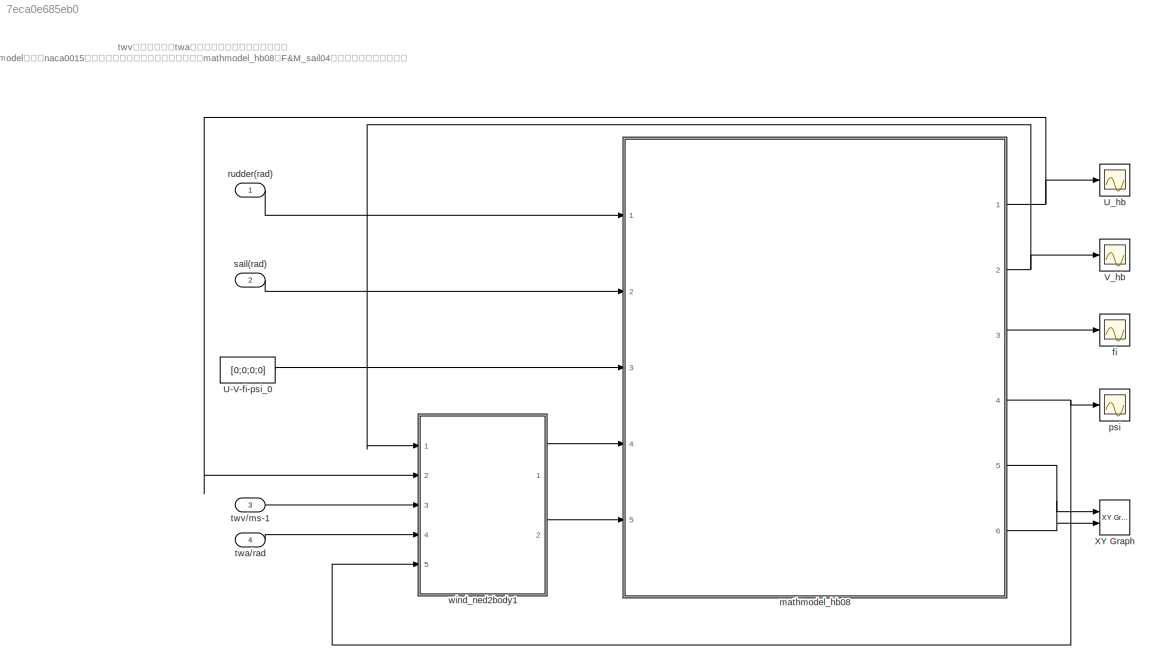
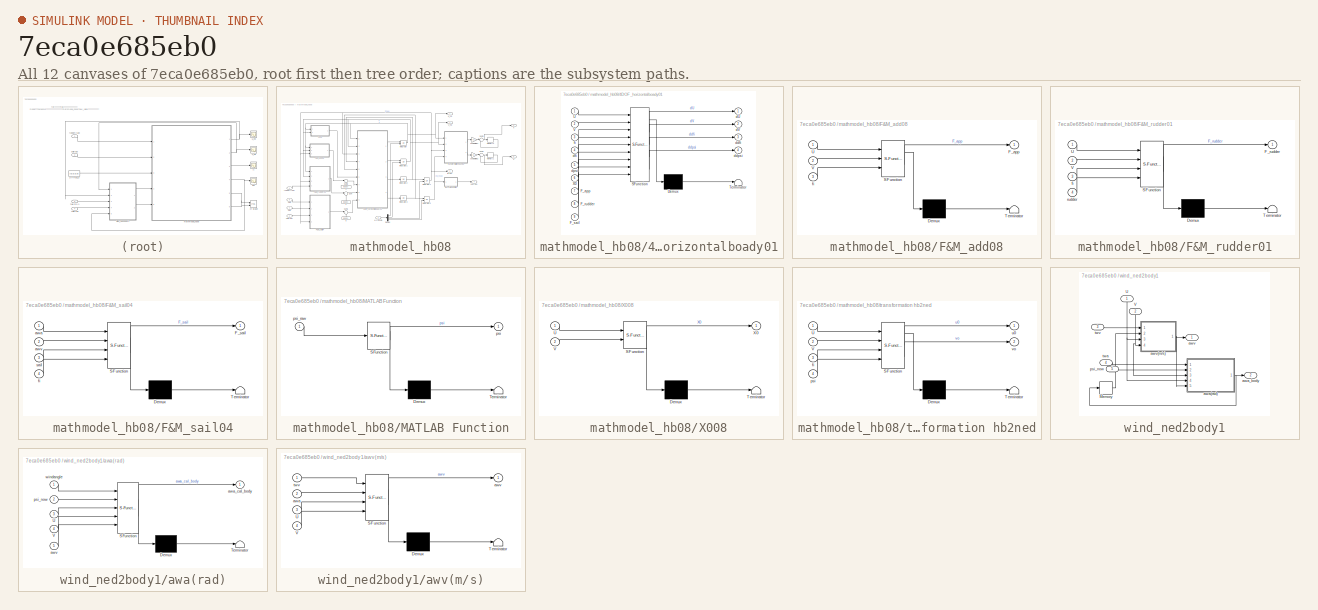
[diagram: thumbnail index - all 12 canvases of the model, root first then tree order]
MODEL slx_7eca0e685eb0
KIND model
BLOCK [Constant] U-V-fi-psi_0
  Value = [0;0;0;0]
BLOCK [Scope] U_hb
  DataFormat = StructureWithTime
  Floating = off
  NumInputPorts = 1
  Ports = [1]
  SampleTime = 0
  SaveName = ScopeData2
  ShowLegends = off
  YMax = 1.5
  YMin = -0.5
BLOCK [Scope] V_hb
  DataFormat = StructureWithTime
  Floating = off
  NumInputPorts = 1
  Ports = [1]
  SampleTime = 0
  SaveName = ScopeData1
  ShowLegends = off
  YMax = 0.4
  YMin = -0.4
BLOCK [Reference] XY Graph  REF=simulink/Sinks/XY Graph
  Ports = [2]
  SourceBlock = simulink/Sinks/XY Graph
  SourceType = XY scope.
  st = -1
  xmax = 150
  xmin = -050
  ymax = 150
  ymin = -50
BLOCK [Scope] fi
  DataFormat = StructureWithTime
  Floating = off
  NumInputPorts = 1
  Ports = [1]
  SampleTime = 0
  ShowLegends = off
  YMax = 0.5
  YMin = -0.5
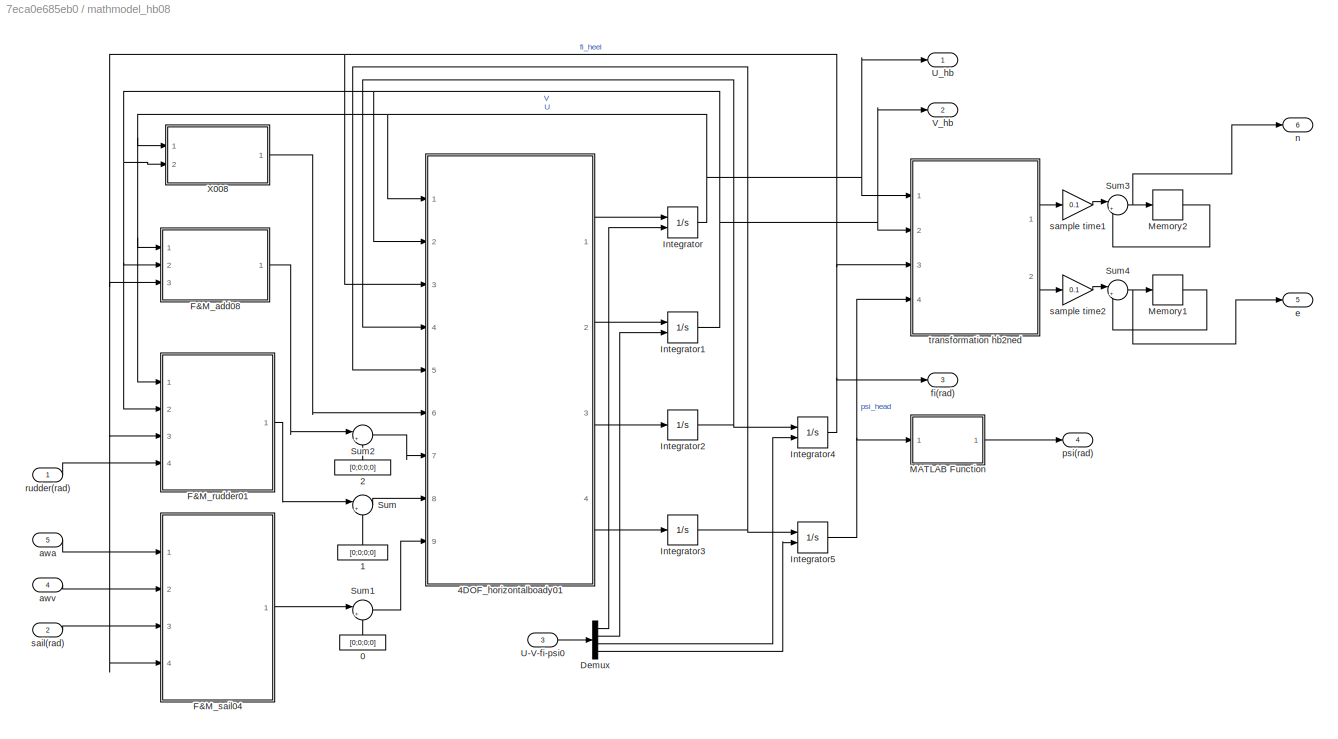
BLOCK [SubSystem] mathmodel_hb08
  Ports = [5, 6]
  RequestExecContextInheritance = off
BLOCK [Constant] mathmodel_hb08/0
  Value = [0;0;0;0]
BLOCK [Constant] mathmodel_hb08/1
  Value = [0;0;0;0]
BLOCK [Constant] mathmodel_hb08/2
  Value = [0;0;0;0]
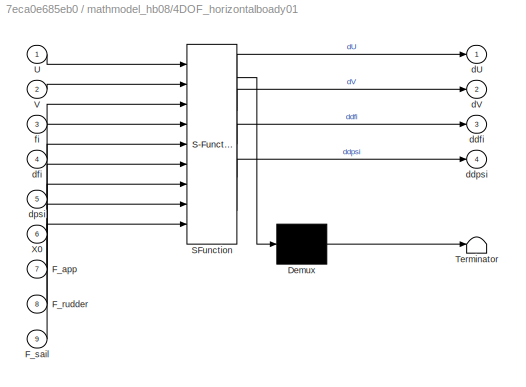
BLOCK [SubSystem] mathmodel_hb08/4DOF_horizontalboady01
  ErrorFcn = Stateflow.Translate.translate
  PermitHierarchicalResolution = ExplicitOnly
  Ports = [9, 4]
  RequestExecContextInheritance = off
  SFBlockType = MATLAB Function
  TreatAsAtomicUnit = on
BLOCK [Demux] mathmodel_hb08/4DOF_horizontalboady01/ Demux 
  Outputs = 1
  Ports = [1, 1]
BLOCK [S-Function] mathmodel_hb08/4DOF_horizontalboady01/ SFunction 
  EnableBusSupport = on
  FunctionName = sf_sfun
  Parameters = par
  PortCounts = [9 5]
  Ports = [9, 5]
  Tag = Stateflow S-Function final_sailboat_model_horizontalbody08 2
BLOCK [Terminator] mathmodel_hb08/4DOF_horizontalboady01/ Terminator 
BLOCK [Inport] mathmodel_hb08/4DOF_horizontalboady01/F_app
  IconDisplay = Port number
  Port = 7
BLOCK [Inport] mathmodel_hb08/4DOF_horizontalboady01/F_rudder
  IconDisplay = Port number
  Port = 8
BLOCK [Inport] mathmodel_hb08/4DOF_horizontalboady01/F_sail
  IconDisplay = Port number
  Port = 9
BLOCK [Inport] mathmodel_hb08/4DOF_horizontalboady01/U
  IconDisplay = Port number
BLOCK [Inport] mathmodel_hb08/4DOF_horizontalboady01/V
  IconDisplay = Port number
  Port = 2
BLOCK [Inport] mathmodel_hb08/4DOF_horizontalboady01/X0
  IconDisplay = Port number
  Port = 6
BLOCK [Outport] mathmodel_hb08/4DOF_horizontalboady01/dU
  IconDisplay = Port number
BLOCK [Outport] mathmodel_hb08/4DOF_horizontalboady01/dV
  IconDisplay = Port number
  Port = 2
BLOCK [Outport] mathmodel_hb08/4DOF_horizontalboady01/ddfi
  IconDisplay = Port number
  Port = 3
BLOCK [Outport] mathmodel_hb08/4DOF_horizontalboady01/ddpsi
  IconDisplay = Port number
  Port = 4
BLOCK [Inport] mathmodel_hb08/4DOF_horizontalboady01/dfi
  IconDisplay = Port number
  Port = 4
BLOCK [Inport] mathmodel_hb08/4DOF_horizontalboady01/dpsi
  IconDisplay = Port number
  Port = 5
BLOCK [Inport] mathmodel_hb08/4DOF_horizontalboady01/fi
  IconDisplay = Port number
  Port = 3
BLOCK [Demux] mathmodel_hb08/Demux
  DisplayOption = bar
  Ports = [1, 4]
BLOCK [SubSystem] mathmodel_hb08/F&M_add08
  ErrorFcn = Stateflow.Translate.translate
  PermitHierarchicalResolution = ExplicitOnly
  Ports = [3, 1]
  RequestExecContextInheritance = off
  SFBlockType = MATLAB Function
  TreatAsAtomicUnit = on
BLOCK [Demux] mathmodel_hb08/F&M_add08/ Demux 
  Outputs = 1
  Ports = [1, 1]
BLOCK [S-Function] mathmodel_hb08/F&M_add08/ SFunction 
  EnableBusSupport = on
  FunctionName = sf_sfun
  Parameters = par
  PortCounts = [3 2]
  Ports = [3, 2]
  Tag = Stateflow S-Function final_sailboat_model_horizontalbody08 3
BLOCK [Terminator] mathmodel_hb08/F&M_add08/ Terminator 
BLOCK [Outport] mathmodel_hb08/F&M_add08/F_app
  IconDisplay = Port number
BLOCK [Inport] mathmodel_hb08/F&M_add08/U
  IconDisplay = Port number
BLOCK [Inport] mathmodel_hb08/F&M_add08/V
  IconDisplay = Port number
  Port = 2
BLOCK [Inport] mathmodel_hb08/F&M_add08/fi
  IconDisplay = Port number
  Port = 3
BLOCK [SubSystem] mathmodel_hb08/F&M_rudder01
  ErrorFcn = Stateflow.Translate.translate
  PermitHierarchicalResolution = ExplicitOnly
  Ports = [4, 1]
  RequestExecContextInheritance = off
  SFBlockType = MATLAB Function
  TreatAsAtomicUnit = on
BLOCK [Demux] mathmodel_hb08/F&M_rudder01/ Demux 
  Outputs = 1
  Ports = [1, 1]
BLOCK [S-Function] mathmodel_hb08/F&M_rudder01/ SFunction 
  EnableBusSupport = on
  FunctionName = sf_sfun
  Parameters = par
  PortCounts = [4 2]
  Ports = [4, 2]
  Tag = Stateflow S-Function final_sailboat_model_horizontalbody08 5
BLOCK [Terminator] mathmodel_hb08/F&M_rudder01/ Terminator 
BLOCK [Outport] mathmodel_hb08/F&M_rudder01/F_rudder
  IconDisplay = Port number
BLOCK [Inport] mathmodel_hb08/F&M_rudder01/U
  IconDisplay = Port number
BLOCK [Inport] mathmodel_hb08/F&M_rudder01/V
  IconDisplay = Port number
  Port = 2
BLOCK [Inport] mathmodel_hb08/F&M_rudder01/fi
  IconDisplay = Port number
  Port = 3
BLOCK [Inport] mathmodel_hb08/F&M_rudder01/rudder
  IconDisplay = Port number
  Port = 4
BLOCK [SubSystem] mathmodel_hb08/F&M_sail04
  ErrorFcn = Stateflow.Translate.translate
  PermitHierarchicalResolution = ExplicitOnly
  Ports = [4, 1]
  RequestExecContextInheritance = off
  SFBlockType = MATLAB Function
  TreatAsAtomicUnit = on
BLOCK [Demux] mathmodel_hb08/F&M_sail04/ Demux 
  Outputs = 1
  Ports = [1, 1]
BLOCK [S-Function] mathmodel_hb08/F&M_sail04/ SFunction 
  EnableBusSupport = on
  FunctionName = sf_sfun
  Parameters = par
  PortCounts = [4 2]
  Ports = [4, 2]
  Tag = Stateflow S-Function final_sailboat_model_horizontalbody08 7
BLOCK [Terminator] mathmodel_hb08/F&M_sail04/ Terminator 
BLOCK [Outport] mathmodel_hb08/F&M_sail04/F_sail
  IconDisplay = Port number
BLOCK [Inport] mathmodel_hb08/F&M_sail04/awa
  IconDisplay = Port number
BLOCK [Inport] mathmodel_hb08/F&M_sail04/awv
  IconDisplay = Port number
  Port = 2
BLOCK [Inport] mathmodel_hb08/F&M_sail04/fi
  IconDisplay = Port number
  Port = 4
BLOCK [Inport] mathmodel_hb08/F&M_sail04/sail
  IconDisplay = Port number
  Port = 3
BLOCK [Integrator] mathmodel_hb08/Integrator
  InitialConditionSource = external
  Ports = [2, 1]
BLOCK [Integrator] mathmodel_hb08/Integrator1
  InitialConditionSource = external
  Ports = [2, 1]
BLOCK [Integrator] mathmodel_hb08/Integrator2
  Ports = [1, 1]
BLOCK [Integrator] mathmodel_hb08/Integrator3
  Ports = [1, 1]
BLOCK [Integrator] mathmodel_hb08/Integrator4
  InitialConditionSource = external
  Ports = [2, 1]
BLOCK [Integrator] mathmodel_hb08/Integrator5
  InitialConditionSource = external
  Ports = [2, 1]
BLOCK [SubSystem] mathmodel_hb08/MATLAB Function
  ErrorFcn = Stateflow.Translate.translate
  PermitHierarchicalResolution = ExplicitOnly
  Ports = [1, 1]
  RequestExecContextInheritance = off
  SFBlockType = MATLAB Function
  TreatAsAtomicUnit = on
BLOCK [Demux] mathmodel_hb08/MATLAB Function/ Demux 
  Outputs = 1
  Ports = [1, 1]
BLOCK [S-Function] mathmodel_hb08/MATLAB Function/ SFunction 
  EnableBusSupport = on
  FunctionName = sf_sfun
  PortCounts = [1 2]
  Ports = [1, 2]
  Tag = Stateflow S-Function final_sailboat_model_horizontalbody08 8
BLOCK [Terminator] mathmodel_hb08/MATLAB Function/ Terminator 
BLOCK [Outport] mathmodel_hb08/MATLAB Function/psi
  IconDisplay = Port number
BLOCK [Inport] mathmodel_hb08/MATLAB Function/psi_raw
  IconDisplay = Port number
BLOCK [Memory] mathmodel_hb08/Memory1
  InheritSampleTime = on
BLOCK [Memory] mathmodel_hb08/Memory2
  InheritSampleTime = on
BLOCK [Sum] mathmodel_hb08/Sum
  IconShape = round
  InputSameDT = off
  Inputs = |++
  OutDataTypeStr = Inherit: Inherit via internal rule
  Ports = [2, 1]
  SaturateOnIntegerOverflow = off
BLOCK [Sum] mathmodel_hb08/Sum1
  IconShape = round
  InputSameDT = off
  Inputs = |++
  OutDataTypeStr = Inherit: Inherit via internal rule
  Ports = [2, 1]
  SaturateOnIntegerOverflow = off
BLOCK [Sum] mathmodel_hb08/Sum2
  IconShape = round
  InputSameDT = off
  Inputs = |++
  OutDataTypeStr = Inherit: Inherit via internal rule
  Ports = [2, 1]
  SaturateOnIntegerOverflow = off
BLOCK [Sum] mathmodel_hb08/Sum3
  IconShape = round
  InputSameDT = off
  Inputs = |++
  OutDataTypeStr = Inherit: Inherit via internal rule
  Ports = [2, 1]
  SaturateOnIntegerOverflow = off
BLOCK [Sum] mathmodel_hb08/Sum4
  IconShape = round
  InputSameDT = off
  Inputs = |++
  OutDataTypeStr = Inherit: Inherit via internal rule
  Ports = [2, 1]
  SaturateOnIntegerOverflow = off
BLOCK [Inport] mathmodel_hb08/U-V-fi-psi0
  IconDisplay = Port number
  Port = 3
BLOCK [Outport] mathmodel_hb08/U_hb
  IconDisplay = Port number
BLOCK [Outport] mathmodel_hb08/V_hb
  IconDisplay = Port number
  Port = 2
BLOCK [SubSystem] mathmodel_hb08/X008
  ErrorFcn = Stateflow.Translate.translate
  PermitHierarchicalResolution = ExplicitOnly
  Ports = [2, 1]
  RequestExecContextInheritance = off
  SFBlockType = MATLAB Function
  TreatAsAtomicUnit = on
BLOCK [Demux] mathmodel_hb08/X008/ Demux 
  Outputs = 1
  Ports = [1, 1]
BLOCK [S-Function] mathmodel_hb08/X008/ SFunction 
  EnableBusSupport = on
  FunctionName = sf_sfun
  Parameters = par
  PortCounts = [2 2]
  Ports = [2, 2]
  Tag = Stateflow S-Function final_sailboat_model_horizontalbody08 9
BLOCK [Terminator] mathmodel_hb08/X008/ Terminator 
BLOCK [Inport] mathmodel_hb08/X008/U
  IconDisplay = Port number
BLOCK [Inport] mathmodel_hb08/X008/V
  IconDisplay = Port number
  Port = 2
BLOCK [Outport] mathmodel_hb08/X008/X0
  IconDisplay = Port number
BLOCK [Inport] mathmodel_hb08/awa
  IconDisplay = Port number
  Port = 5
BLOCK [Inport] mathmodel_hb08/awv
  IconDisplay = Port number
  Port = 4
BLOCK [Outport] mathmodel_hb08/e
  IconDisplay = Port number
  Port = 5
BLOCK [Outport] mathmodel_hb08/fi(rad)
  IconDisplay = Port number
  Port = 3
BLOCK [Outport] mathmodel_hb08/n
  IconDisplay = Port number
  Port = 6
BLOCK [Outport] mathmodel_hb08/psi(rad)
  IconDisplay = Port number
  Port = 4
BLOCK [Inport] mathmodel_hb08/rudder(rad)
  IconDisplay = Port number
BLOCK [Inport] mathmodel_hb08/sail(rad)
  IconDisplay = Port number
  Port = 2
BLOCK [Gain] mathmodel_hb08/sample time1
  Gain = 0.1
  OutDataTypeStr = Inherit: Inherit via internal rule
  ParamDataTypeStr = Inherit: Inherit via internal rule
  SaturateOnIntegerOverflow = off
BLOCK [Gain] mathmodel_hb08/sample time2
  Gain = 0.1
  OutDataTypeStr = Inherit: Inherit via internal rule
  ParamDataTypeStr = Inherit: Inherit via internal rule
  SaturateOnIntegerOverflow = off
BLOCK [SubSystem] mathmodel_hb08/transformation hb2ned
  ErrorFcn = Stateflow.Translate.translate
  PermitHierarchicalResolution = ExplicitOnly
  Ports = [4, 2]
  RequestExecContextInheritance = off
  SFBlockType = MATLAB Function
  TreatAsAtomicUnit = on
BLOCK [Demux] mathmodel_hb08/transformation hb2ned/ Demux 
  Outputs = 1
  Ports = [1, 1]
BLOCK [S-Function] mathmodel_hb08/transformation hb2ned/ SFunction 
  EnableBusSupport = on
  FunctionName = sf_sfun
  PortCounts = [4 3]
  Ports = [4, 3]
  Tag = Stateflow S-Function final_sailboat_model_horizontalbody08 10
BLOCK [Terminator] mathmodel_hb08/transformation hb2ned/ Terminator 
BLOCK [Inport] mathmodel_hb08/transformation hb2ned/U
  IconDisplay = Port number
BLOCK [Inport] mathmodel_hb08/transformation hb2ned/V
  IconDisplay = Port number
  Port = 2
BLOCK [Inport] mathmodel_hb08/transformation hb2ned/fi
  IconDisplay = Port number
  Port = 3
BLOCK [Inport] mathmodel_hb08/transformation hb2ned/psi
  IconDisplay = Port number
  Port = 4
BLOCK [Outport] mathmodel_hb08/transformation hb2ned/u0
  IconDisplay = Port number
BLOCK [Outport] mathmodel_hb08/transformation hb2ned/vo
  IconDisplay = Port number
  Port = 2
BLOCK [Scope] psi 
  DataFormat = StructureWithTime
  Floating = off
  NumInputPorts = 1
  Ports = [1]
  SampleTime = 0
  SaveName = ScopeData3
  ShowLegends = off
  YMax = 4
  YMin = -4
BLOCK [Inport] rudder(rad)
  IconDisplay = Port number
BLOCK [Inport] sail(rad)
  IconDisplay = Port number
  Port = 2
BLOCK [Inport] twa//rad
  IconDisplay = Port number
  Port = 4
BLOCK [Inport] twv//ms-1
  IconDisplay = Port number
  Port = 3
BLOCK [SubSystem] wind_ned2body1
  Ports = [5, 2]
  RequestExecContextInheritance = off
BLOCK [Memory] wind_ned2body1/Memory
BLOCK [Inport] wind_ned2body1/U
  IconDisplay = Port number
BLOCK [Inport] wind_ned2body1/V
  IconDisplay = Port number
  Port = 2
BLOCK [SubSystem] wind_ned2body1/awa(rad)
  ErrorFcn = Stateflow.Translate.translate
  PermitHierarchicalResolution = ExplicitOnly
  Ports = [5, 1]
  RequestExecContextInheritance = off
  SFBlockType = MATLAB Function
  TreatAsAtomicUnit = on
BLOCK [Demux] wind_ned2body1/awa(rad)/ Demux 
  Outputs = 1
  Ports = [1, 1]
BLOCK [S-Function] wind_ned2body1/awa(rad)/ SFunction 
  EnableBusSupport = on
  FunctionName = sf_sfun
  PortCounts = [5 2]
  Ports = [5, 2]
  Tag = Stateflow S-Function final_sailboat_model_horizontalbody08 6
BLOCK [Terminator] wind_ned2body1/awa(rad)/ Terminator 
BLOCK [Inport] wind_ned2body1/awa(rad)/U
  IconDisplay = Port number
  Port = 3
BLOCK [Inport] wind_ned2body1/awa(rad)/V
  IconDisplay = Port number
  Port = 4
BLOCK [Outport] wind_ned2body1/awa(rad)/awa_cal_body
  IconDisplay = Port number
BLOCK [Inport] wind_ned2body1/awa(rad)/awv
  IconDisplay = Port number
  Port = 5
BLOCK [Inport] wind_ned2body1/awa(rad)/psi_now
  IconDisplay = Port number
  Port = 2
BLOCK [Inport] wind_ned2body1/awa(rad)/windangle
  IconDisplay = Port number
BLOCK [Outport] wind_ned2body1/awa_body
  IconDisplay = Port number
  Port = 2
BLOCK [Outport] wind_ned2body1/awv
  IconDisplay = Port number
BLOCK [SubSystem] wind_ned2body1/awv(m//s)
  ErrorFcn = Stateflow.Translate.translate
  PermitHierarchicalResolution = ExplicitOnly
  Ports = [4, 1]
  RequestExecContextInheritance = off
  SFBlockType = MATLAB Function
  TreatAsAtomicUnit = on
BLOCK [Demux] wind_ned2body1/awv(m//s)/ Demux 
  Outputs = 1
  Ports = [1, 1]
BLOCK [S-Function] wind_ned2body1/awv(m//s)/ SFunction 
  EnableBusSupport = on
  FunctionName = sf_sfun
  PortCounts = [4 2]
  Ports = [4, 2]
  Tag = Stateflow S-Function final_sailboat_model_horizontalbody08 1
BLOCK [Terminator] wind_ned2body1/awv(m//s)/ Terminator 
BLOCK [Inport] wind_ned2body1/awv(m//s)/U
  IconDisplay = Port number
  Port = 3
BLOCK [Inport] wind_ned2body1/awv(m//s)/V
  IconDisplay = Port number
  Port = 4
BLOCK [Inport] wind_ned2body1/awv(m//s)/awa
  IconDisplay = Port number
  Port = 2
BLOCK [Outport] wind_ned2body1/awv(m//s)/awv
  IconDisplay = Port number
BLOCK [Inport] wind_ned2body1/awv(m//s)/twv
  IconDisplay = Port number
BLOCK [Inport] wind_ned2body1/psi_now
  IconDisplay = Port number
  Port = 5
BLOCK [Inport] wind_ned2body1/twa
  IconDisplay = Port number
  Port = 4
BLOCK [Inport] wind_ned2body1/twv
  IconDisplay = Port number
  Port = 3
ANNOTATION (root): twv指真风风速，twa指真风风向角（北东地坐标下） model中帆为naca0015的数据，要改也很容易。。。只在模型mathmodel_hb08的F&M_sail04中更改升阻力系数表即可
LINE U-V-fi-psi_0:1 -> mathmodel_hb08:3
LINE mathmodel_hb08/0:1 -> mathmodel_hb08/Sum1:2
LINE mathmodel_hb08/1:1 -> mathmodel_hb08/Sum:2
LINE mathmodel_hb08/2:1 -> mathmodel_hb08/Sum2:2
LINE mathmodel_hb08/4DOF_horizontalboady01:1 -> mathmodel_hb08/Integrator:1
LINE mathmodel_hb08/4DOF_horizontalboady01:2 -> mathmodel_hb08/Integrator1:1
LINE mathmodel_hb08/4DOF_horizontalboady01:3 -> mathmodel_hb08/Integrator2:1
LINE mathmodel_hb08/4DOF_horizontalboady01:4 -> mathmodel_hb08/Integrator3:1
LINE mathmodel_hb08/Demux:1 -> mathmodel_hb08/Integrator:2
LINE mathmodel_hb08/Demux:2 -> mathmodel_hb08/Integrator1:2
LINE mathmodel_hb08/Demux:3 -> mathmodel_hb08/Integrator4:2
LINE mathmodel_hb08/Demux:4 -> mathmodel_hb08/Integrator5:2
LINE mathmodel_hb08/F&M_add08:1 -> mathmodel_hb08/Sum2:1
LINE mathmodel_hb08/F&M_rudder01:1 -> mathmodel_hb08/Sum:1
LINE mathmodel_hb08/F&M_sail04:1 -> mathmodel_hb08/Sum1:1
NET mathmodel_hb08/Integrator1:1 -> mathmodel_hb08/4DOF_horizontalboady01:2, mathmodel_hb08/F&M_add08:2, mathmodel_hb08/F&M_rudder01:2, mathmodel_hb08/V_hb:1, mathmodel_hb08/X008:2, mathmodel_hb08/transformation hb2ned:2
NET mathmodel_hb08/Integrator2:1 -> mathmodel_hb08/4DOF_horizontalboady01:4, mathmodel_hb08/Integrator4:1
NET mathmodel_hb08/Integrator3:1 -> mathmodel_hb08/4DOF_horizontalboady01:5, mathmodel_hb08/Integrator5:1
NET mathmodel_hb08/Integrator4:1 -> mathmodel_hb08/4DOF_horizontalboady01:3, mathmodel_hb08/F&M_add08:3, mathmodel_hb08/F&M_rudder01:3, mathmodel_hb08/F&M_sail04:4, mathmodel_hb08/fi(rad):1, mathmodel_hb08/transformation hb2ned:3
NET mathmodel_hb08/Integrator5:1 -> mathmodel_hb08/MATLAB Function:1, mathmodel_hb08/transformation hb2ned:4
NET mathmodel_hb08/Integrator:1 -> mathmodel_hb08/4DOF_horizontalboady01:1, mathmodel_hb08/F&M_add08:1, mathmodel_hb08/F&M_rudder01:1, mathmodel_hb08/U_hb:1, mathmodel_hb08/X008:1, mathmodel_hb08/transformation hb2ned:1
LINE mathmodel_hb08/MATLAB Function:1 -> mathmodel_hb08/psi(rad):1
LINE mathmodel_hb08/Memory1:1 -> mathmodel_hb08/Sum4:2
LINE mathmodel_hb08/Memory2:1 -> mathmodel_hb08/Sum3:2
LINE mathmodel_hb08/Sum1:1 -> mathmodel_hb08/4DOF_horizontalboady01:9
LINE mathmodel_hb08/Sum2:1 -> mathmodel_hb08/4DOF_horizontalboady01:7
NET mathmodel_hb08/Sum3:1 -> mathmodel_hb08/Memory2:1, mathmodel_hb08/n:1
NET mathmodel_hb08/Sum4:1 -> mathmodel_hb08/Memory1:1, mathmodel_hb08/e:1
LINE mathmodel_hb08/Sum:1 -> mathmodel_hb08/4DOF_horizontalboady01:8
LINE mathmodel_hb08/U-V-fi-psi0:1 -> mathmodel_hb08/Demux:1
LINE mathmodel_hb08/X008:1 -> mathmodel_hb08/4DOF_horizontalboady01:6
LINE mathmodel_hb08/awa:1 -> mathmodel_hb08/F&M_sail04:1
LINE mathmodel_hb08/awv:1 -> mathmodel_hb08/F&M_sail04:2
LINE mathmodel_hb08/rudder(rad):1 -> mathmodel_hb08/F&M_rudder01:4
LINE mathmodel_hb08/sail(rad):1 -> mathmodel_hb08/F&M_sail04:3
LINE mathmodel_hb08/sample time1:1 -> mathmodel_hb08/Sum3:1
LINE mathmodel_hb08/sample time2:1 -> mathmodel_hb08/Sum4:1
LINE mathmodel_hb08/transformation hb2ned:1 -> mathmodel_hb08/sample time1:1
LINE mathmodel_hb08/transformation hb2ned:2 -> mathmodel_hb08/sample time2:1
NET mathmodel_hb08:1 -> U_hb:1, wind_ned2body1:2
NET mathmodel_hb08:2 -> V_hb:1, wind_ned2body1:1
LINE mathmodel_hb08:3 -> fi:1
NET mathmodel_hb08:4 -> psi :1, wind_ned2body1:5
LINE mathmodel_hb08:5 -> XY Graph:1
LINE mathmodel_hb08:6 -> XY Graph:2
LINE rudder(rad):1 -> mathmodel_hb08:1
LINE sail(rad):1 -> mathmodel_hb08:2
LINE twa//rad:1 -> wind_ned2body1:4
LINE twv//ms-1:1 -> wind_ned2body1:3
LINE wind_ned2body1/Memory:1 -> wind_ned2body1/awv(m//s):2
NET wind_ned2body1/U:1 -> wind_ned2body1/awa(rad):4, wind_ned2body1/awv(m//s):3
NET wind_ned2body1/V:1 -> wind_ned2body1/awa(rad):3, wind_ned2body1/awv(m//s):4
NET wind_ned2body1/awa(rad):1 -> wind_ned2body1/Memory:1, wind_ned2body1/awa_body:1
NET wind_ned2body1/awv(m//s):1 -> wind_ned2body1/awa(rad):5, wind_ned2body1/awv:1
LINE wind_ned2body1/psi_now:1 -> wind_ned2body1/awa(rad):2
LINE wind_ned2body1/twa:1 -> wind_ned2body1/awa(rad):1
LINE wind_ned2body1/twv:1 -> wind_ned2body1/awv(m//s):1
LINE wind_ned2body1:1 -> mathmodel_hb08:4
LINE wind_ned2body1:2 -> mathmodel_hb08:5
note: NET lines group one-source signal fan-out (src -> all destinations, sorted); 1:1 wires keep LINE
CHART wind_ned2body1/awv(m//s) states=1 transitions=1
  STATE_LABEL 'eML_blk_kernel()'
  STATE_LABEL 'SCRIPT:\nfunction awv = fcn(twv , awa , U , V)\n%#codegen\n    leeway = atan2(V , U);\n    Vyacht = sqrt(U^2 + V^2);\n    awv = sqrt(Vyacht^2 +twv^2 + 2*Vyacht*twv*cos(awa - leeway));\nend'
CHART mathmodel_hb08/4DOF_horizontalboady01 states=1 transitions=1
  STATE_LABEL 'eML_blk_kernel()'
  STATE_LABEL 'SCRIPT:\nfunction [dU,dV,ddfi,ddpsi] = fcn(par,U,V,fi,dfi,dpsi,X0,F_app,F_rudder,F_sail)\n%#codegen\n%horizontal body axis system, (x,y,z,U,V,W,fi_cap=fi,theta_cap=0,psi_cap=psi)\nVb=sqrt(U^2+V^2);\nXvdpsi = par.Xvdpsi*(0.5*par.rouwater*par.lwl^2*par.draftwithkeel);\nYdfi = par.Ydfi*(0.5*par.rouwater*par.lwl^2*par.draftwithkeel*Vb);\nYdpsi = par.Ydpsi*(0.5*par.rouwater*par.lwl^2*par.draftwithkeel*Vb);\nKd...<+1449ch>'
CHART mathmodel_hb08/F&M_add08 states=1 transitions=1
  STATE_LABEL 'eML_blk_kernel()'
  STATE_LABEL 'SCRIPT:\nfunction F_app = fcn(par,U,V,fi)\n%引用的是predicting the speed of sailing\n%yachts的附录3的回归公式，是针对IACC美洲杯竞技船的船模试验结果，虽然船型有些不一致，但是作为近似结果已经足够且合适。\nF_app=zeros(4,1);\nVyacht = sqrt(U^2 + V^2);\nq=0.5*par.rouwater*Vyacht^2*(par.swet*0.7/2+par.areakeel);\n%似乎因横倾产生的增阻乘的是船体湿表面积，诱导阻力和因leeway产生的增阻才乘area_LT侧向面积？此处为方便计做了任！性！简化\n%sail(angle) is positive when the sail trailing is on the starboard(righthand)(-pi,pi)\n...<+1313ch>'
CHART mathmodel_hb08/F&M_rudder01 states=1 transitions=1
  STATE_LABEL 'eML_blk_kernel()'
  STATE_LABEL 'SCRIPT:\nfunction F_rudder = fcn(par,U,V,fi,rudder)\n%#codegen\n% rudder is positive when operate the right rudder(-pi,pi)\nF_rudder=zeros(4,1);\nVb = sqrt(U^2+V^2);\nq=0.5*par.rouwater*(0.9*Vb)^2*par.arearudder;\n%sail(angle) is positive when the sail trailing is on the starboard(righthand)(-pi,pi)\nleeway=atan2(V,U);\nattack_rudder=leeway+rudder;\n[Clr,Cdr]=ruddercoef(attack_rudder);\nCx=Clr*cos(fi)*sin(le...<+2198ch>'
CHART wind_ned2body1/awa(rad) states=1 transitions=1
  STATE_LABEL 'eML_blk_kernel()'
  STATE_LABEL 'SCRIPT:\nfunction awa_cal_body = fcn(windangle,psi_now,U,V,awv)\n%#codegen\n%calculate instead of real awa in sailboat\n%the wind directi is defined as common,the wind of north means the windangle is 0\nVyacht = sqrt(U^2 + V^2);\nleeway = atan2( V , U);\nwindangle=mod(windangle,2*pi);\nif windangle>pi\n    windangle=windangle-2*pi;\nend\n%now the windangle[-pi,pi) and is defined as regular\n%psi_now(-pi,pi)\nt...<+287ch>'
CHART mathmodel_hb08/F&M_sail04 states=1 transitions=1
  STATE_LABEL 'eML_blk_kernel()'
  STATE_LABEL 'SCRIPT:\nfunction F_sail = fcn(par,awa,awv,sail,fi)\n%#codegen\n%awa is positive when the wind blow to the right face of the sail(-pi,pi)\nF_sail=zeros(4,1);\nq=0.5*par.rouair*awv^2*par.areasail;\n%sail(angle) is positive when the sail trailing is on the starboard(righthand)(-pi,pi)\nattack_sail=awa+sail;\narsail = par.arsail;\n[Cls,Cds]=sailcoef(attack_sail,arsail);\nCx=Cls*sin(awa)-Cds*cos(awa);\nCy=-Cls*c...<+2197ch>'
CHART mathmodel_hb08/MATLAB Function states=1 transitions=1
  STATE_LABEL 'eML_blk_kernel()'
  STATE_LABEL 'SCRIPT:\nfunction psi = fcn(psi_raw)\n%#codegen\npsi=mod(psi_raw,2*pi);\nif psi>pi\n    psi=psi-2*pi;\nend'
CHART mathmodel_hb08/X008 states=1 transitions=1
  STATE_LABEL 'eML_blk_kernel()'
  STATE_LABEL 'SCRIPT:\nfunction X0 = resistance0(par,U,V)\n%#采用maxsurf计算剩余阻力Rrhu，因为maxsurf也是用的delft船型经验公式，因此与论文一致\nVb = sqrt(U^2+V^2);\nReh = Vb * par.lwl*0.7/1.139*1e6;\ncf = 0.075 / (log(Reh)-2)^2;\nRfhu = 0.5*par.rouwater*U^2*par.swet*cf;\nfn = Vb/sqrt(par.g*par.lwl);\nRrhu = regressionRr(Vb);\n\nRek = Vb*par.ckeel/0.000014607;\ncfk = 0.075 / (log(Rek)-2)^2;   \nRfku = 0.5*par.rouwater*U^2*par.swetkeel*cfk;  \nkk = 2*par...<+1981ch>'
CHART mathmodel_hb08/transformation hb2ned states=1 transitions=1
  STATE_LABEL 'eML_blk_kernel()'
  STATE_LABEL 'SCRIPT:\nfunction [u0,vo]= fcn(U,V,fi,psi)\n%#codegen\n% transformations from {hb} to {ned}\nR_b2n=[cos(psi) -sin(psi)*cos(fi) sin(psi)*sin(fi)\n       sin(psi) cos(psi)*cos(fi) -cos(psi)*sin(fi)\n       0        sin(fi)           cos(fi)];\nR_hb2b=[1  0       0\n        0 cos(fi)  sin(fi)\n        0 -sin(fi) cos(fi)];\nvb0=R_b2n*R_hb2b*[U;V;0];\nu0=vb0(1);\nvo=vb0(2);'
